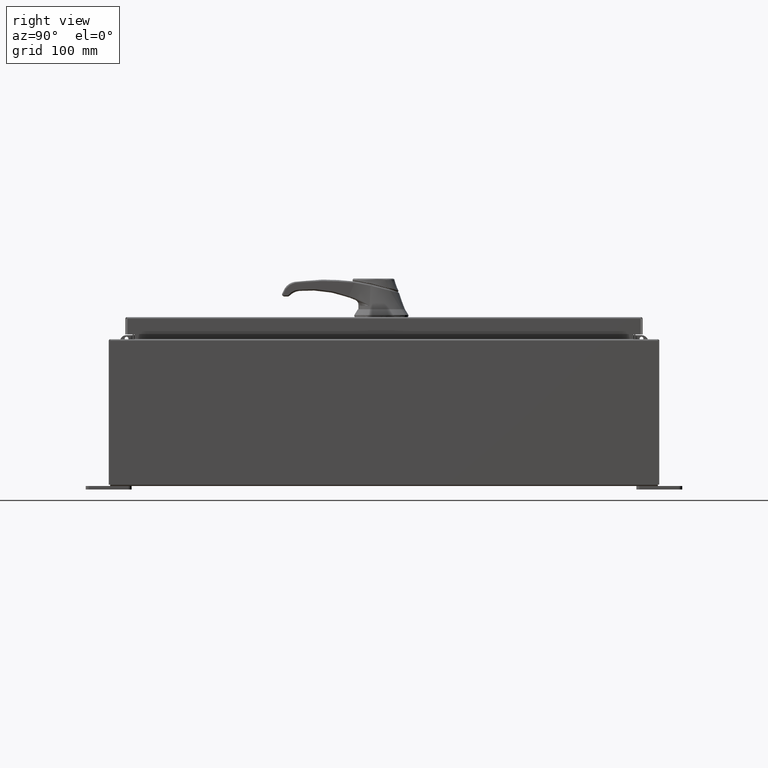
[diagram: clean part render]
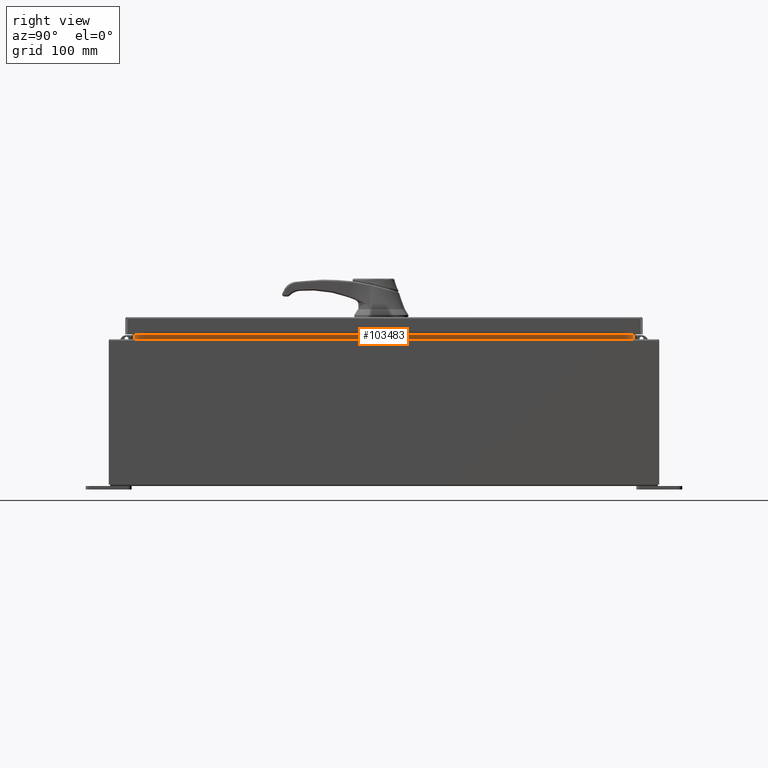
[diagram: same view with one face highlighted and labeled with its STEP entity id]
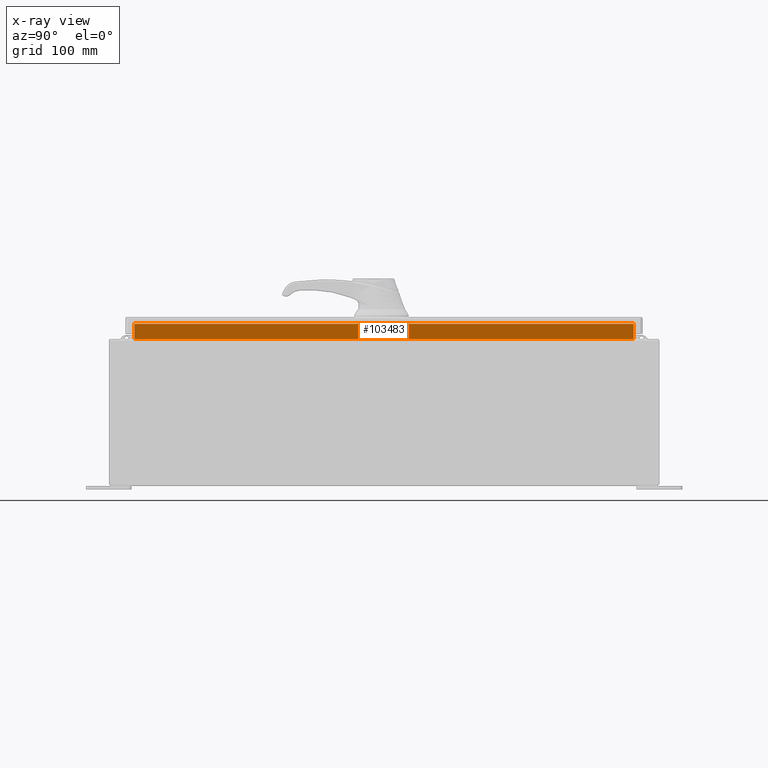
[diagram: x-ray of the same camera — body ghosted, the highlighted face saturated]
A machine part, right view. The second image highlights one B-rep face of the part: STEP entity #103483.
The next image is the same camera in x-ray: the body ghosted, the highlighted face saturated — about 0% of this face is hidden behind the body in this view.
In plain terms, the highlighted planar face has unit normal (1, -0, -0).
Its self-contained STEP definition (entity closure, byte-faithful):
#571 = EDGE_CURVE ( 'NONE', #22730, #69364, #18814, .T. ) ;
#978 = CARTESIAN_POINT ( 'NONE',  ( 8.699700000000028400, -13.59375000000000000, 7.938300000000009700 ) ) ;
#1628 = DIRECTION ( 'NONE',  ( -3.542869979895294000E-015, -0.0000000000000000000, -1.000000000000000000 ) ) ;
#16498 = VECTOR ( 'NONE', #1628, 39.37007874015748100 ) ;
#18814 = LINE ( 'NONE', #114958, #39972 ) ;
#19718 = DIRECTION ( 'NONE',  ( 1.000000000000000000, -1.423975319009148500E-031, -3.542869979895294000E-015 ) ) ;
#22730 = VERTEX_POINT ( 'NONE', #978 ) ;
#28986 = EDGE_CURVE ( 'NONE', #48961, #107630, #46132, .T. ) ;
#33015 = ORIENTED_EDGE ( 'NONE', *, *, #58467, .F. ) ;
#36143 = ORIENTED_EDGE ( 'NONE', *, *, #28986, .F. ) ;
#36527 = VECTOR ( 'NONE', #107525, 39.37007874015748100 ) ;
#39275 = EDGE_LOOP ( 'NONE', ( #36143, #33015, #94665, #65818 ) ) ;
#39972 = VECTOR ( 'NONE', #101084, 39.37007874015748100 ) ;
#40550 = LINE ( 'NONE', #88738, #109948 ) ;
#43329 = DIRECTION ( 'NONE',  ( 4.019270611368110000E-017, -1.000000000000000000, 1.205781183410432900E-016 ) ) ;
#46132 = LINE ( 'NONE', #55748, #16498 ) ;
#48961 = VERTEX_POINT ( 'NONE', #102217 ) ;
#52837 = CARTESIAN_POINT ( 'NONE',  ( 8.699700000000032000, -13.59374999999999800, 8.762900000000009000 ) ) ;
#55203 = CARTESIAN_POINT ( 'NONE',  ( 8.699700000000000000, -1.238815808278388900E-030, -3.082190596409509000E-014 ) ) ;
#55606 = PLANE ( 'NONE',  #116324 ) ;
#55748 = CARTESIAN_POINT ( 'NONE',  ( 8.699700000000028400, 13.59375000000000700, 7.925300000000008900 ) ) ;
#58467 = EDGE_CURVE ( 'NONE', #69364, #48961, #108714, .T. ) ;
#65471 = EDGE_CURVE ( 'NONE', #107630, #22730, #40550, .T. ) ;
#65818 = ORIENTED_EDGE ( 'NONE', *, *, #65471, .F. ) ;
#69364 = VERTEX_POINT ( 'NONE', #52837 ) ;
#80988 = CARTESIAN_POINT ( 'NONE',  ( 8.699700000000028400, 13.59375000000000900, 7.938300000000009700 ) ) ;
#82888 = DIRECTION ( 'NONE',  ( -3.542869979895294000E-015, 0.0000000000000000000, -1.000000000000000000 ) ) ;
#88738 = CARTESIAN_POINT ( 'NONE',  ( 8.699700000000028400, 13.59375000000000700, 7.938300000000008800 ) ) ;
#94665 = ORIENTED_EDGE ( 'NONE', *, *, #571, .F. ) ;
#98400 = CARTESIAN_POINT ( 'NONE',  ( 8.699700000000030200, -13.59374999999999800, 8.762900000000009000 ) ) ;
#101084 = DIRECTION ( 'NONE',  ( 3.542869979895298400E-015, -0.0000000000000000000, 1.000000000000000000 ) ) ;
#102217 = CARTESIAN_POINT ( 'NONE',  ( 8.699700000000030200, 13.59375000000000700, 8.762900000000009000 ) ) ;
#103483 = ADVANCED_FACE ( 'NONE', ( #115609 ), #55606, .T. ) ;
#107525 = DIRECTION ( 'NONE',  ( 0.0000000000000000000, 1.000000000000000000, 0.0000000000000000000 ) ) ;
#107630 = VERTEX_POINT ( 'NONE', #80988 ) ;
#108714 = LINE ( 'NONE', #98400, #36527 ) ;
#109948 = VECTOR ( 'NONE', #43329, 39.37007874015748100 ) ;
#114958 = CARTESIAN_POINT ( 'NONE',  ( 8.699700000000032000, -13.59374999999999800, 8.850600000000008900 ) ) ;
#115609 = FACE_OUTER_BOUND ( 'NONE', #39275, .T. ) ;
#116324 = AXIS2_PLACEMENT_3D ( 'NONE', #55203, #19718, #82888 ) ;